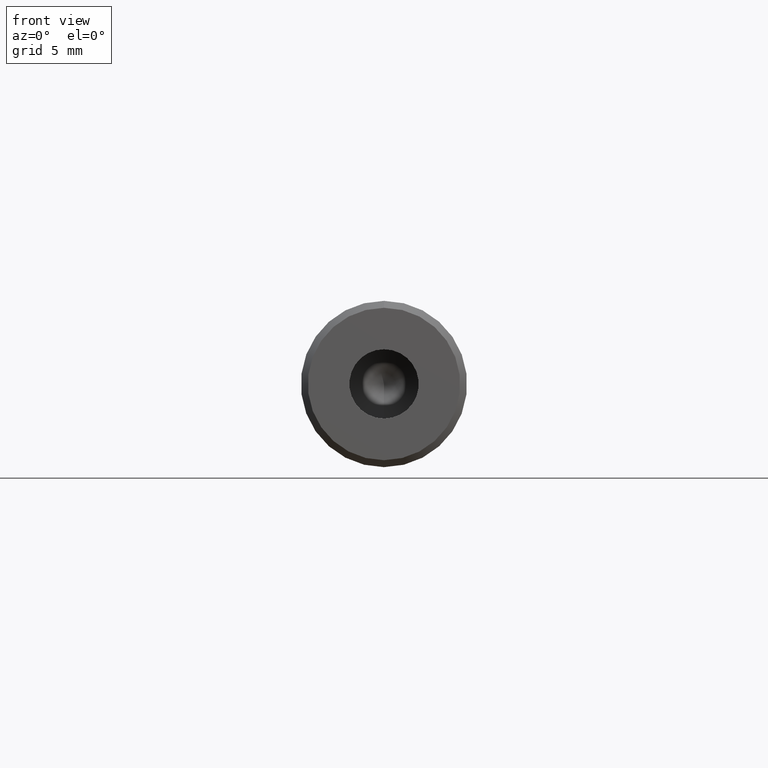
[diagram: clean part render]
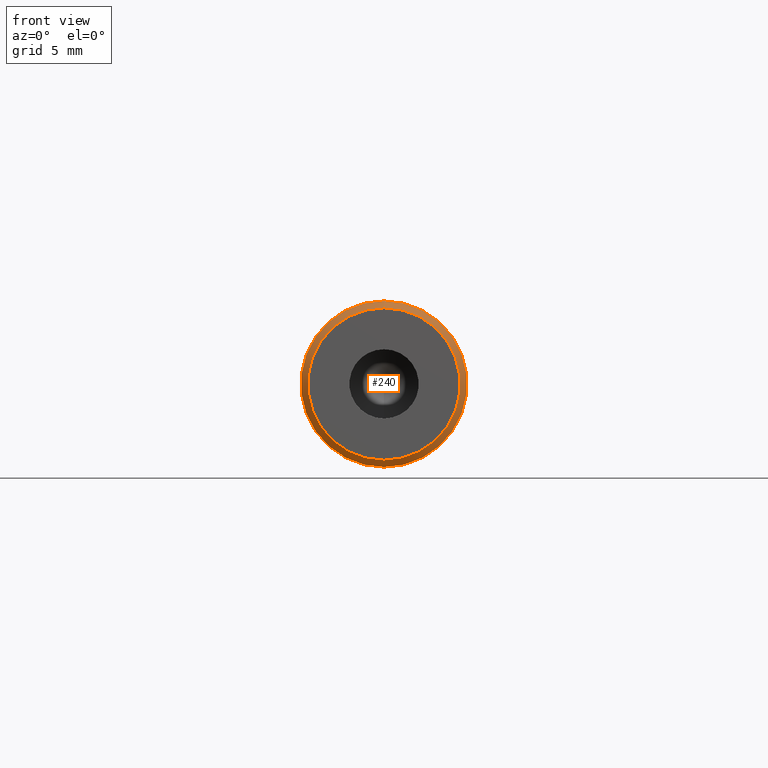
[diagram: same view with one face highlighted and labeled with its STEP entity id]
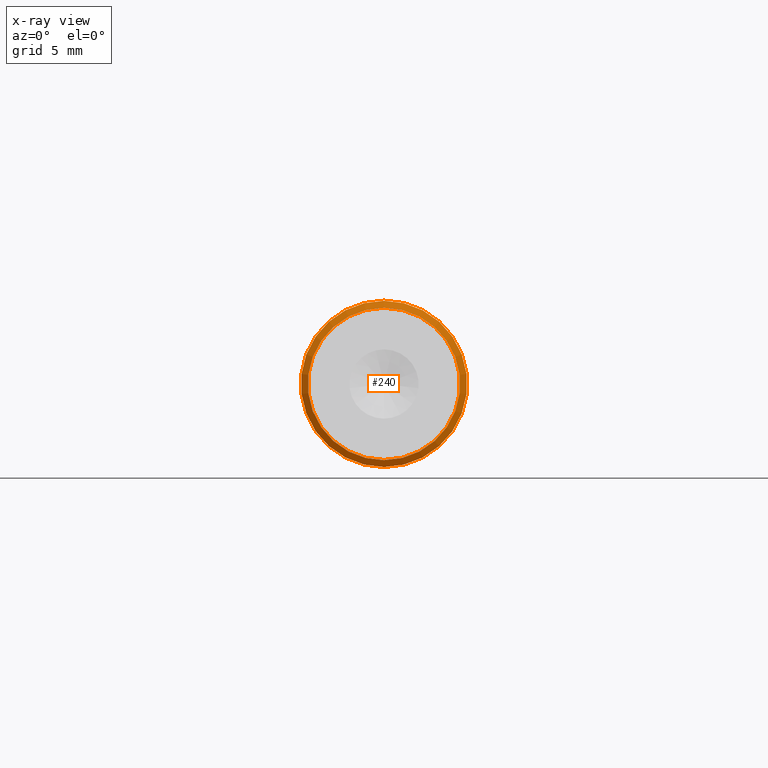
[diagram: x-ray of the same camera — body ghosted, the highlighted face saturated]
A machine part, front view. The second image highlights one B-rep face of the part: STEP entity #240.
The next image is the same camera in x-ray: the body ghosted, the highlighted face saturated — about 0% of this face is hidden behind the body in this view.
In plain terms, the highlighted conical surface has half-angle 45 deg.
Its self-contained STEP definition (entity closure, byte-faithful):
#5 = EDGE_CURVE ( 'NONE', #161, #161, #267, .T. ) ;
#16 = CARTESIAN_POINT ( 'NONE',  ( 0.000000000000000000, 0.5000000001018634066, 0.000000000000000000 ) ) ;
#19 = FACE_BOUND ( 'NONE', #300, .T. ) ;
#33 = AXIS2_PLACEMENT_3D ( 'NONE', #157, #61, #303 ) ;
#34 = ORIENTED_EDGE ( 'NONE', *, *, #5, .T. ) ;
#42 = FACE_OUTER_BOUND ( 'NONE', #224, .T. ) ;
#61 = DIRECTION ( 'NONE',  ( 0.000000000000000000, 1.000000000000000000, 0.000000000000000000 ) ) ;
#72 = CARTESIAN_POINT ( 'NONE',  ( 0.000000000000000000, 0.5000000000000004441, 0.000000000000000000 ) ) ;
#118 = EDGE_CURVE ( 'NONE', #164, #164, #127, .T. ) ;
#127 = CIRCLE ( 'NONE', #295, 6.000000000000000888 ) ;
#142 = CARTESIAN_POINT ( 'NONE',  ( 0.000000000000000000, 0.5000000000000004441, -6.000000000000000888 ) ) ;
#157 = CARTESIAN_POINT ( 'NONE',  ( 0.000000000000000000, 0.000000000000000000, 0.000000000000000000 ) ) ;
#161 = VERTEX_POINT ( 'NONE', #256 ) ;
#164 = VERTEX_POINT ( 'NONE', #142 ) ;
#183 = DIRECTION ( 'NONE',  ( 0.000000000000000000, 0.000000000000000000, 1.000000000000000000 ) ) ;
#201 = ORIENTED_EDGE ( 'NONE', *, *, #118, .F. ) ;
#202 = AXIS2_PLACEMENT_3D ( 'NONE', #16, #299, #183 ) ;
#217 = DIRECTION ( 'NONE',  ( 0.000000000000000000, 0.000000000000000000, -1.000000000000000000 ) ) ;
#220 = CONICAL_SURFACE ( 'NONE', #202, 6.000000000085492502, 0.7853981633406048601 ) ;
#224 = EDGE_LOOP ( 'NONE', ( #201 ) ) ;
#240 = ADVANCED_FACE ( 'NONE', ( #42, #19 ), #220, .T. ) ;
#243 = DIRECTION ( 'NONE',  ( 0.000000000000000000, 1.000000000000000000, 0.000000000000000000 ) ) ;
#256 = CARTESIAN_POINT ( 'NONE',  ( 0.000000000000000000, 0.000000000000000000, 5.500000000040472514 ) ) ;
#267 = CIRCLE ( 'NONE', #33, 5.500000000040472514 ) ;
#295 = AXIS2_PLACEMENT_3D ( 'NONE', #72, #243, #217 ) ;
#299 = DIRECTION ( 'NONE',  ( 0.000000000000000000, 1.000000000000000000, 0.000000000000000000 ) ) ;
#300 = EDGE_LOOP ( 'NONE', ( #34 ) ) ;
#303 = DIRECTION ( 'NONE',  ( 0.000000000000000000, 0.000000000000000000, 1.000000000000000000 ) ) ;